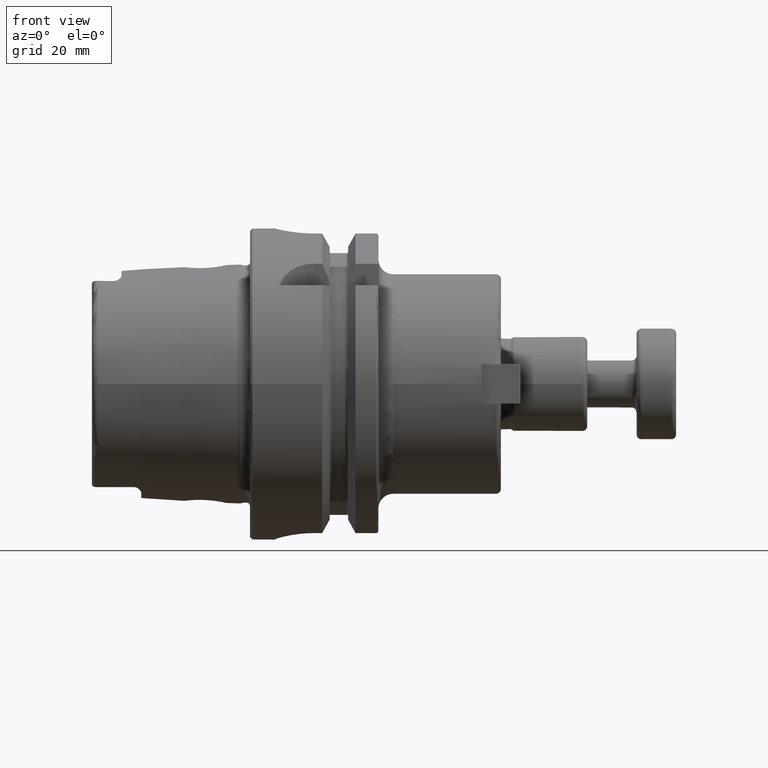
[diagram: clean part render]
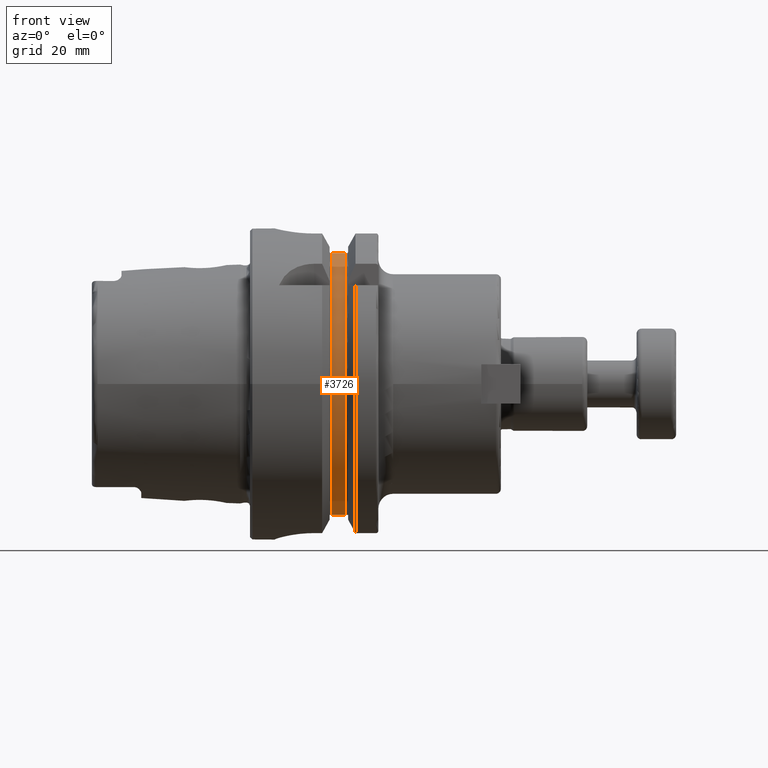
[diagram: same view with one face highlighted and labeled with its STEP entity id]
A machine part, front view. The second image highlights one B-rep face of the part: STEP entity #3726.
In plain terms, the highlighted cylindrical surface (partial cylindrical patch) has radius 27.5 mm, axis along (1, 0, 0).
Its self-contained STEP definition (entity closure, byte-faithful):
#812=CYLINDRICAL_SURFACE('',#4197,27.5);
#923=FACE_OUTER_BOUND('',#1124,.T.);
#1124=EDGE_LOOP('',(#3126,#3127,#3128,#3129));
#1336=LINE('',#6863,#1530);
#1347=LINE('',#6995,#1541);
#1530=VECTOR('',#4927,10.);
#1541=VECTOR('',#4992,10.);
#1721=CIRCLE('',#4186,27.5);
#1727=CIRCLE('',#4198,27.5);
#2035=VERTEX_POINT('',#6808);
#2043=VERTEX_POINT('',#6852);
#2056=VERTEX_POINT('',#6948);
#2061=VERTEX_POINT('',#6993);
#2424=EDGE_CURVE('',#2035,#2043,#1336,.T.);
#2446=EDGE_CURVE('',#2056,#2035,#1721,.T.);
#2457=EDGE_CURVE('',#2061,#2043,#1727,.T.);
#2458=EDGE_CURVE('',#2061,#2056,#1347,.T.);
#3126=ORIENTED_EDGE('',*,*,#2424,.T.);
#3127=ORIENTED_EDGE('',*,*,#2457,.F.);
#3128=ORIENTED_EDGE('',*,*,#2458,.T.);
#3129=ORIENTED_EDGE('',*,*,#2446,.T.);
#3726=ADVANCED_FACE('',(#923),#812,.T.);
#4186=AXIS2_PLACEMENT_3D('',#6949,#4964,#4965);
#4197=AXIS2_PLACEMENT_3D('',#6992,#4988,#4989);
#4198=AXIS2_PLACEMENT_3D('',#6994,#4990,#4991);
#4927=DIRECTION('',(1.,0.,0.));
#4964=DIRECTION('center_axis',(1.,0.,0.));
#4965=DIRECTION('ref_axis',(0.,0.,-1.));
#4988=DIRECTION('center_axis',(1.,0.,0.));
#4989=DIRECTION('ref_axis',(0.,-1.,-1.22464679914735E-16));
#4990=DIRECTION('center_axis',(1.,0.,0.));
#4991=DIRECTION('ref_axis',(0.,0.,-1.));
#4992=DIRECTION('',(-1.,0.,0.));
#6808=CARTESIAN_POINT('',(16.625,-7.34846922834952,-26.5));
#6852=CARTESIAN_POINT('',(19.375,-7.34846922834952,-26.5));
#6863=CARTESIAN_POINT('',(18.,-7.34846922834952,-26.5));
#6948=CARTESIAN_POINT('',(16.625,-7.34846922834952,26.5));
#6949=CARTESIAN_POINT('Origin',(16.625,0.,0.));
#6992=CARTESIAN_POINT('Origin',(18.,0.,0.));
#6993=CARTESIAN_POINT('',(19.375,-7.34846922834952,26.5));
#6994=CARTESIAN_POINT('Origin',(19.375,0.,0.));
#6995=CARTESIAN_POINT('',(18.,-7.34846922834952,26.5));